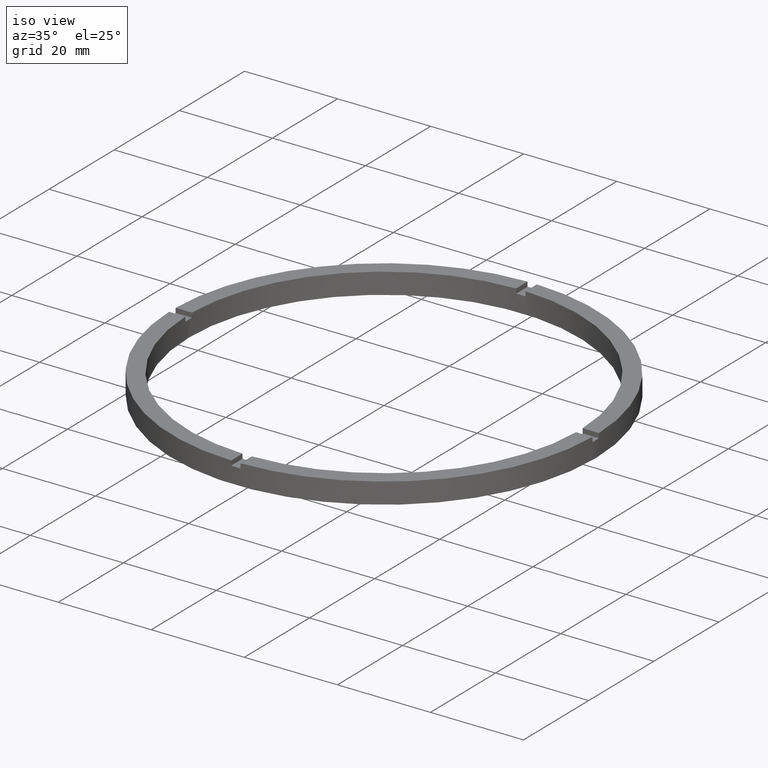
[diagram: clean part render]
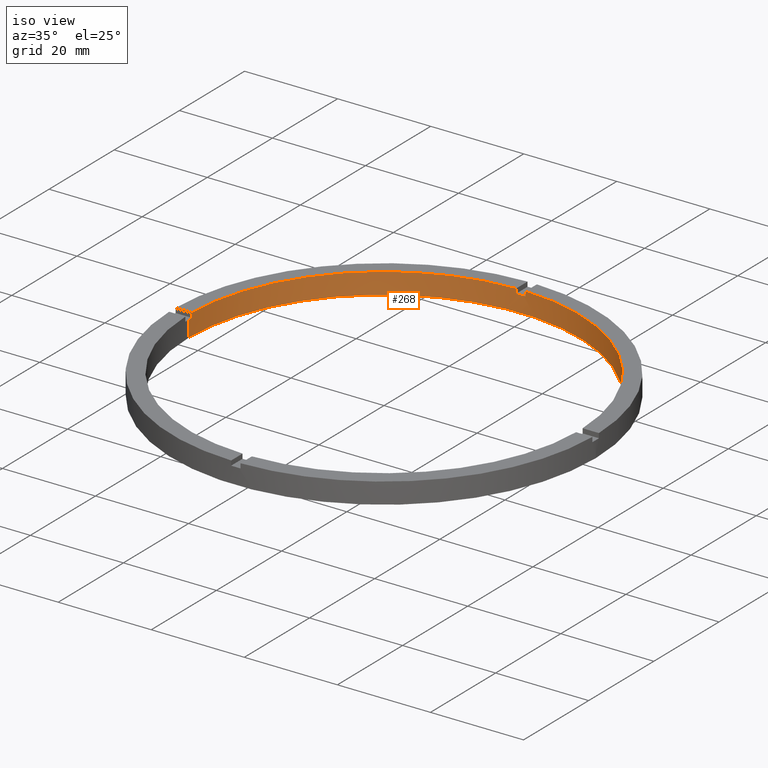
[diagram: same view with one face highlighted and labeled with its STEP entity id]
A machine part, iso view. The second image highlights one B-rep face of the part: STEP entity #268.
In plain terms, the highlighted cylindrical surface (partial cylindrical patch) has radius 42 mm, axis along (-0, -0, -1).
Its self-contained STEP definition (entity closure, byte-faithful):
#7 = CIRCLE ( 'NONE', #587, 42.00000000000000000 ) ;
#8 = VECTOR ( 'NONE', #783, 1000.000000000000000 ) ;
#14 = CARTESIAN_POINT ( 'NONE',  ( 0.9999999999999737987, 41.98809355043403713, 4.500000000000000000 ) ) ;
#15 = DIRECTION ( 'NONE',  ( 0.000000000000000000, 0.000000000000000000, 1.000000000000000000 ) ) ;
#16 = AXIS2_PLACEMENT_3D ( 'NONE', #625, #29, #82 ) ;
#22 = CARTESIAN_POINT ( 'NONE',  ( 41.98809355043403713, 0.9999999999998436806, 4.500000000000000000 ) ) ;
#29 = DIRECTION ( 'NONE',  ( 0.000000000000000000, 0.000000000000000000, 1.000000000000000000 ) ) ;
#71 = CARTESIAN_POINT ( 'NONE',  ( 0.000000000000000000, 0.000000000000000000, 4.500000000000000000 ) ) ;
#82 = DIRECTION ( 'NONE',  ( 1.000000000000000000, 0.000000000000000000, 0.000000000000000000 ) ) ;
#83 = CARTESIAN_POINT ( 'NONE',  ( -42.00000000000000000, 0.000000000000000000, 4.500000000000000000 ) ) ;
#88 = EDGE_CURVE ( 'NONE', #365, #453, #619, .T. ) ;
#90 = DIRECTION ( 'NONE',  ( 0.000000000000000000, 0.000000000000000000, 1.000000000000000000 ) ) ;
#98 = CARTESIAN_POINT ( 'NONE',  ( 0.000000000000000000, 0.000000000000000000, 3.499999999999999556 ) ) ;
#108 = LINE ( 'NONE', #592, #258 ) ;
#131 = CARTESIAN_POINT ( 'NONE',  ( 0.9999999999999737987, 41.98809355043403713, 3.499999999999999556 ) ) ;
#149 = AXIS2_PLACEMENT_3D ( 'NONE', #511, #321, #518 ) ;
#151 = EDGE_CURVE ( 'NONE', #398, #453, #108, .T. ) ;
#152 = ORIENTED_EDGE ( 'NONE', *, *, #509, .T. ) ;
#155 = VERTEX_POINT ( 'NONE', #707 ) ;
#161 = EDGE_CURVE ( 'NONE', #193, #155, #7, .T. ) ;
#167 = ORIENTED_EDGE ( 'NONE', *, *, #384, .F. ) ;
#168 = CIRCLE ( 'NONE', #269, 42.00000000000000000 ) ;
#171 = LINE ( 'NONE', #22, #734 ) ;
#173 = VECTOR ( 'NONE', #721, 1000.000000000000000 ) ;
#174 = EDGE_CURVE ( 'NONE', #365, #380, #530, .T. ) ;
#182 = EDGE_LOOP ( 'NONE', ( #496, #450, #749, #471, #429, #342, #761, #213, #220, #152, #719, #167 ) ) ;
#185 = CARTESIAN_POINT ( 'NONE',  ( 41.98809355043403713, 0.9999999999998436806, 4.500000000000000000 ) ) ;
#191 = LINE ( 'NONE', #394, #723 ) ;
#193 = VERTEX_POINT ( 'NONE', #481 ) ;
#195 = LINE ( 'NONE', #83, #173 ) ;
#213 = ORIENTED_EDGE ( 'NONE', *, *, #88, .T. ) ;
#220 = ORIENTED_EDGE ( 'NONE', *, *, #151, .F. ) ;
#223 = VERTEX_POINT ( 'NONE', #441 ) ;
#233 = CYLINDRICAL_SURFACE ( 'NONE', #390, 42.00000000000000000 ) ;
#258 = VECTOR ( 'NONE', #690, 1000.000000000000000 ) ;
#262 = CARTESIAN_POINT ( 'NONE',  ( 42.00000000000000000, 5.143516556418883322E-15, 0.000000000000000000 ) ) ;
#268 = ADVANCED_FACE ( 'NONE', ( #768 ), #233, .F. ) ;
#269 = AXIS2_PLACEMENT_3D ( 'NONE', #71, #624, #411 ) ;
#282 = DIRECTION ( 'NONE',  ( 1.000000000000000000, 0.000000000000000000, 0.000000000000000000 ) ) ;
#284 = DIRECTION ( 'NONE',  ( 1.000000000000000000, 0.000000000000000000, 0.000000000000000000 ) ) ;
#286 = DIRECTION ( 'NONE',  ( 0.000000000000000000, 0.000000000000000000, 1.000000000000000000 ) ) ;
#321 = DIRECTION ( 'NONE',  ( 0.000000000000000000, -0.000000000000000000, 1.000000000000000000 ) ) ;
#334 = CARTESIAN_POINT ( 'NONE',  ( -41.98809355043403713, 0.9999999999999708011, 4.500000000000000000 ) ) ;
#337 = CARTESIAN_POINT ( 'NONE',  ( -1.000000000000026201, 41.98809355043403713, 4.500000000000000000 ) ) ;
#338 = DIRECTION ( 'NONE',  ( 1.000000000000000000, 0.000000000000000000, 0.000000000000000000 ) ) ;
#342 = ORIENTED_EDGE ( 'NONE', *, *, #639, .T. ) ;
#349 = DIRECTION ( 'NONE',  ( -0.000000000000000000, -0.000000000000000000, -1.000000000000000000 ) ) ;
#363 = DIRECTION ( 'NONE',  ( -0.000000000000000000, -0.000000000000000000, -1.000000000000000000 ) ) ;
#365 = VERTEX_POINT ( 'NONE', #651 ) ;
#380 = VERTEX_POINT ( 'NONE', #779 ) ;
#383 = CARTESIAN_POINT ( 'NONE',  ( -41.98809355043403713, 0.9999999999999708011, 3.499999999999999556 ) ) ;
#384 = EDGE_CURVE ( 'NONE', #708, #223, #515, .T. ) ;
#389 = VERTEX_POINT ( 'NONE', #131 ) ;
#390 = AXIS2_PLACEMENT_3D ( 'NONE', #490, #349, #607 ) ;
#394 = CARTESIAN_POINT ( 'NONE',  ( 42.00000000000000000, 5.143516556418883322E-15, 4.500000000000000000 ) ) ;
#398 = VERTEX_POINT ( 'NONE', #383 ) ;
#411 = DIRECTION ( 'NONE',  ( 1.000000000000000000, 0.000000000000000000, 0.000000000000000000 ) ) ;
#420 = CARTESIAN_POINT ( 'NONE',  ( -42.00000000000000000, 0.000000000000000000, 3.499999999999999556 ) ) ;
#424 = CIRCLE ( 'NONE', #571, 42.00000000000000000 ) ;
#429 = ORIENTED_EDGE ( 'NONE', *, *, #548, .F. ) ;
#434 = AXIS2_PLACEMENT_3D ( 'NONE', #543, #472, #282 ) ;
#439 = LINE ( 'NONE', #744, #694 ) ;
#441 = CARTESIAN_POINT ( 'NONE',  ( -42.00000000000000000, 0.000000000000000000, 0.000000000000000000 ) ) ;
#443 = CIRCLE ( 'NONE', #149, 42.00000000000000000 ) ;
#450 = ORIENTED_EDGE ( 'NONE', *, *, #161, .T. ) ;
#453 = VERTEX_POINT ( 'NONE', #334 ) ;
#469 = DIRECTION ( 'NONE',  ( -0.000000000000000000, -0.000000000000000000, -1.000000000000000000 ) ) ;
#471 = ORIENTED_EDGE ( 'NONE', *, *, #674, .T. ) ;
#472 = DIRECTION ( 'NONE',  ( 0.000000000000000000, 0.000000000000000000, 1.000000000000000000 ) ) ;
#481 = CARTESIAN_POINT ( 'NONE',  ( 42.00000000000000000, 5.143516556418883322E-15, 3.499999999999999556 ) ) ;
#490 = CARTESIAN_POINT ( 'NONE',  ( 0.000000000000000000, 0.000000000000000000, 4.500000000000000000 ) ) ;
#496 = ORIENTED_EDGE ( 'NONE', *, *, #526, .F. ) ;
#509 = EDGE_CURVE ( 'NONE', #398, #644, #424, .T. ) ;
#511 = CARTESIAN_POINT ( 'NONE',  ( 0.000000000000000000, 0.000000000000000000, 3.499999999999999556 ) ) ;
#515 = CIRCLE ( 'NONE', #434, 42.00000000000000000 ) ;
#518 = DIRECTION ( 'NONE',  ( 1.000000000000000000, 0.000000000000000000, 0.000000000000000000 ) ) ;
#526 = EDGE_CURVE ( 'NONE', #193, #708, #191, .T. ) ;
#530 = LINE ( 'NONE', #337, #8 ) ;
#543 = CARTESIAN_POINT ( 'NONE',  ( 0.000000000000000000, 0.000000000000000000, 0.000000000000000000 ) ) ;
#548 = EDGE_CURVE ( 'NONE', #389, #696, #439, .T. ) ;
#571 = AXIS2_PLACEMENT_3D ( 'NONE', #98, #286, #338 ) ;
#575 = EDGE_CURVE ( 'NONE', #644, #223, #195, .T. ) ;
#587 = AXIS2_PLACEMENT_3D ( 'NONE', #775, #90, #284 ) ;
#592 = CARTESIAN_POINT ( 'NONE',  ( -41.98809355043403713, 0.9999999999999708011, 4.500000000000000000 ) ) ;
#607 = DIRECTION ( 'NONE',  ( -1.000000000000000000, 0.000000000000000000, 0.000000000000000000 ) ) ;
#619 = CIRCLE ( 'NONE', #16, 42.00000000000000000 ) ;
#624 = DIRECTION ( 'NONE',  ( 0.000000000000000000, 0.000000000000000000, 1.000000000000000000 ) ) ;
#625 = CARTESIAN_POINT ( 'NONE',  ( 0.000000000000000000, 0.000000000000000000, 4.500000000000000000 ) ) ;
#629 = EDGE_CURVE ( 'NONE', #709, #155, #171, .T. ) ;
#639 = EDGE_CURVE ( 'NONE', #389, #380, #443, .T. ) ;
#644 = VERTEX_POINT ( 'NONE', #420 ) ;
#651 = CARTESIAN_POINT ( 'NONE',  ( -1.000000000000026201, 41.98809355043403713, 4.500000000000000000 ) ) ;
#674 = EDGE_CURVE ( 'NONE', #709, #696, #168, .T. ) ;
#690 = DIRECTION ( 'NONE',  ( 0.000000000000000000, 0.000000000000000000, 1.000000000000000000 ) ) ;
#694 = VECTOR ( 'NONE', #15, 1000.000000000000000 ) ;
#696 = VERTEX_POINT ( 'NONE', #14 ) ;
#707 = CARTESIAN_POINT ( 'NONE',  ( 41.98809355043403713, 0.9999999999998436806, 3.499999999999999556 ) ) ;
#708 = VERTEX_POINT ( 'NONE', #262 ) ;
#709 = VERTEX_POINT ( 'NONE', #185 ) ;
#719 = ORIENTED_EDGE ( 'NONE', *, *, #575, .T. ) ;
#721 = DIRECTION ( 'NONE',  ( -0.000000000000000000, -0.000000000000000000, -1.000000000000000000 ) ) ;
#723 = VECTOR ( 'NONE', #469, 1000.000000000000000 ) ;
#734 = VECTOR ( 'NONE', #363, 1000.000000000000000 ) ;
#744 = CARTESIAN_POINT ( 'NONE',  ( 0.9999999999999737987, 41.98809355043403713, 4.500000000000000000 ) ) ;
#749 = ORIENTED_EDGE ( 'NONE', *, *, #629, .F. ) ;
#761 = ORIENTED_EDGE ( 'NONE', *, *, #174, .F. ) ;
#768 = FACE_OUTER_BOUND ( 'NONE', #182, .T. ) ;
#775 = CARTESIAN_POINT ( 'NONE',  ( 0.000000000000000000, 0.000000000000000000, 3.499999999999999556 ) ) ;
#779 = CARTESIAN_POINT ( 'NONE',  ( -1.000000000000026201, 41.98809355043403713, 3.499999999999999556 ) ) ;
#783 = DIRECTION ( 'NONE',  ( -0.000000000000000000, -0.000000000000000000, -1.000000000000000000 ) ) ;